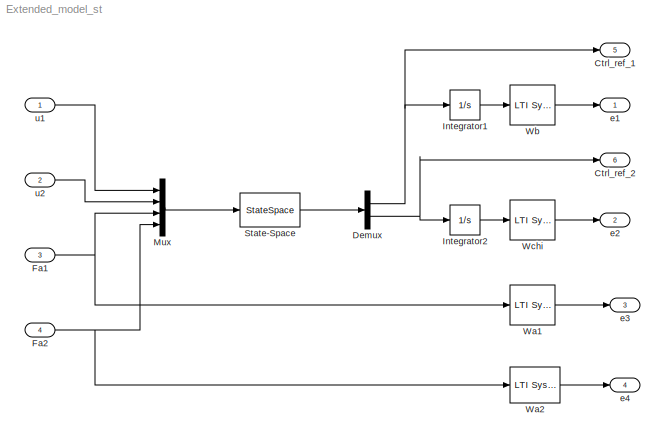
MODEL Extended_model_st
KIND model
BLOCK [Outport] Ctrl_ref_1
  IconDisplay = Port number
  OutDataType = fixdt(1, 16)
  OutScaling = 2^0
  Port = 5
  SID = 17
BLOCK [Outport] Ctrl_ref_2
  IconDisplay = Port number
  OutDataType = fixdt(1, 16)
  OutScaling = 2^0
  Port = 6
  SID = 18
BLOCK [Demux] Demux
  DisplayOption = bar
  Outputs = 2
  Ports = [1, 2]
  SID = 8
BLOCK [Inport] Fa1
  IconDisplay = Port number
  OutDataType = fixdt(1, 16)
  OutScaling = 2^0
  Port = 3
  SID = 4
BLOCK [Inport] Fa2
  IconDisplay = Port number
  OutDataType = fixdt(1, 16)
  OutScaling = 2^0
  Port = 4
  SID = 5
BLOCK [Integrator] Integrator1
  Ports = [1, 1]
  SID = 21
BLOCK [Integrator] Integrator2
  Ports = [1, 1]
  SID = 22
BLOCK [Mux] Mux
  DisplayOption = bar
  Ports = [4, 1]
  SID = 7
BLOCK [StateSpace] State-Space
  A = Ask
  B = Bsk
  C = Csk
  D = Dsk
  SID = 16
BLOCK [Reference] Wa1  REF=cstblocks/LTI System
  FunctionWithSeparateData = off
  IC = []
  Ports = [1, 1]
  RTWMemSecDataConstants = Inherit from model
  RTWMemSecDataInternal = Inherit from model
  RTWMemSecDataParameters = Inherit from model
  RTWMemSecFuncExecute = Inherit from model
  RTWMemSecFuncInitTerm = Inherit from model
  SID = 10
  ShowPortLabels = FromPortIcon
  SourceBlock = cstblocks/LTI System
  SourceType = LTI Block
  SystemSampleTime = -1
  sys = Wa1
BLOCK [Reference] Wa2  REF=cstblocks/LTI System
  FunctionWithSeparateData = off
  IC = []
  Ports = [1, 1]
  RTWMemSecDataConstants = Inherit from model
  RTWMemSecDataInternal = Inherit from model
  RTWMemSecDataParameters = Inherit from model
  RTWMemSecFuncExecute = Inherit from model
  RTWMemSecFuncInitTerm = Inherit from model
  SID = 11
  ShowPortLabels = FromPortIcon
  SourceBlock = cstblocks/LTI System
  SourceType = LTI Block
  SystemSampleTime = -1
  sys = Wa2
BLOCK [Reference] Wb  REF=cstblocks/LTI System
  FunctionWithSeparateData = off
  IC = []
  Ports = [1, 1]
  RTWMemSecDataConstants = Inherit from model
  RTWMemSecDataInternal = Inherit from model
  RTWMemSecDataParameters = Inherit from model
  RTWMemSecFuncExecute = Inherit from model
  RTWMemSecFuncInitTerm = Inherit from model
  SID = 14
  ShowPortLabels = FromPortIcon
  SourceBlock = cstblocks/LTI System
  SourceType = LTI Block
  SystemSampleTime = -1
  sys = Wb
BLOCK [Reference] Wchi  REF=cstblocks/LTI System
  FunctionWithSeparateData = off
  IC = []
  Ports = [1, 1]
  RTWMemSecDataConstants = Inherit from model
  RTWMemSecDataInternal = Inherit from model
  RTWMemSecDataParameters = Inherit from model
  RTWMemSecFuncExecute = Inherit from model
  RTWMemSecFuncInitTerm = Inherit from model
  SID = 15
  ShowPortLabels = FromPortIcon
  SourceBlock = cstblocks/LTI System
  SourceType = LTI Block
  SystemSampleTime = -1
  sys = Wchi
BLOCK [Outport] e1
  IconDisplay = Port number
  OutDataType = fixdt(1, 16)
  OutScaling = 2^0
  SID = 1
BLOCK [Outport] e2
  IconDisplay = Port number
  OutDataType = fixdt(1, 16)
  OutScaling = 2^0
  Port = 2
  SID = 9
BLOCK [Outport] e3
  IconDisplay = Port number
  OutDataType = fixdt(1, 16)
  OutScaling = 2^0
  Port = 3
  SID = 12
BLOCK [Outport] e4
  IconDisplay = Port number
  OutDataType = fixdt(1, 16)
  OutScaling = 2^0
  Port = 4
  SID = 13
BLOCK [Inport] u1
  IconDisplay = Port number
  OutDataType = fixdt(1, 16)
  OutScaling = 2^0
  SID = 2
BLOCK [Inport] u2
  IconDisplay = Port number
  OutDataType = fixdt(1, 16)
  OutScaling = 2^0
  Port = 2
  SID = 3
NET Demux:1 -> Ctrl_ref_1:1, Integrator1:1
NET Demux:2 -> Ctrl_ref_2:1, Integrator2:1
NET Fa1:1 -> Mux:3, Wa1:1
NET Fa2:1 -> Mux:4, Wa2:1
LINE Integrator1:1 -> Wb:1
LINE Integrator2:1 -> Wchi:1
LINE Mux:1 -> State-Space:1
LINE State-Space:1 -> Demux:1
LINE Wa1:1 -> e3:1
LINE Wa2:1 -> e4:1
LINE Wb:1 -> e1:1
LINE Wchi:1 -> e2:1
LINE u1:1 -> Mux:1
LINE u2:1 -> Mux:2
note: NET lines group one-source signal fan-out (src -> all destinations, sorted); 1:1 wires keep LINE
